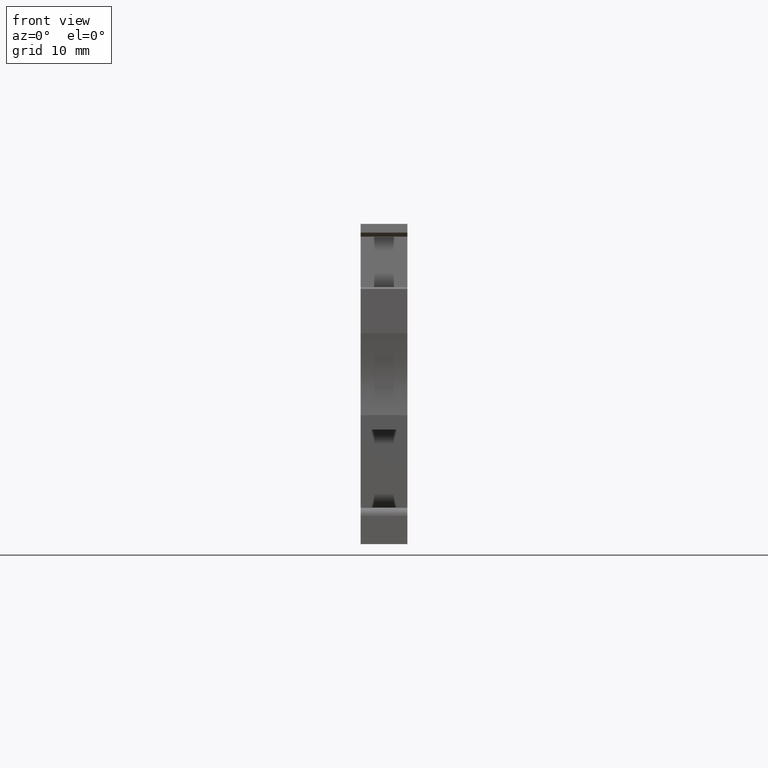
[diagram: clean part render]
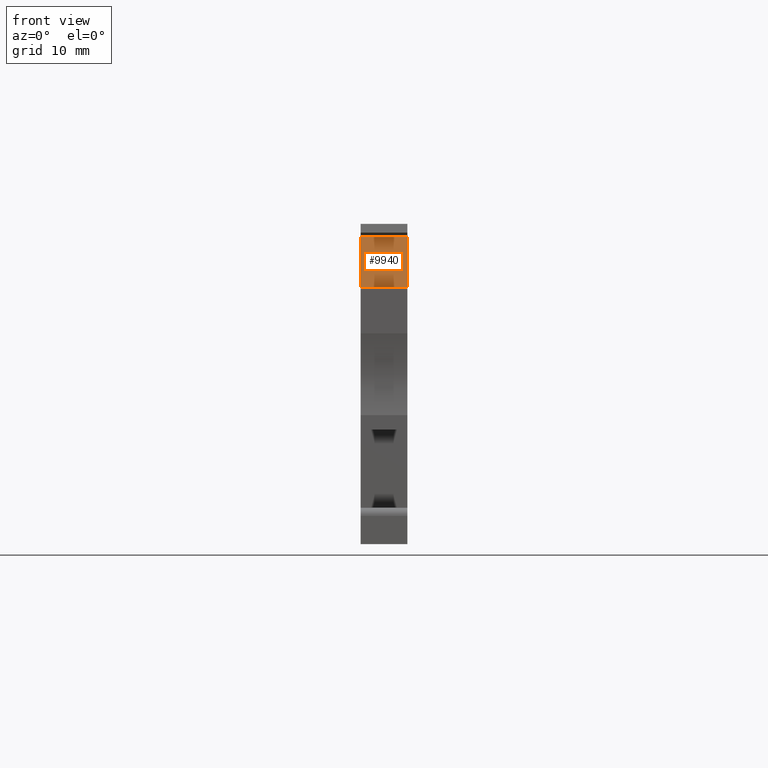
[diagram: same view with one face highlighted and labeled with its STEP entity id]
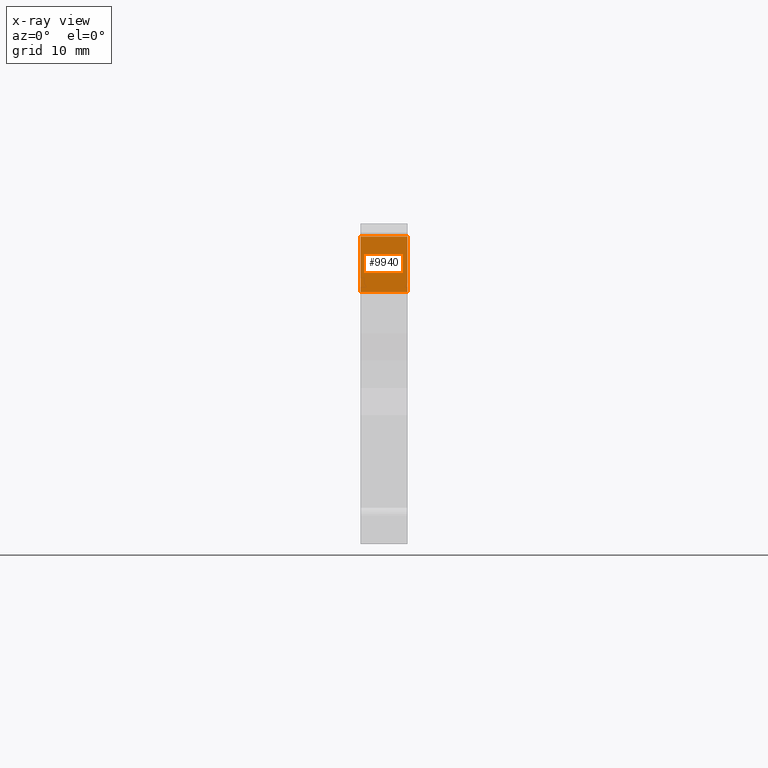
[diagram: x-ray of the same camera — body ghosted, the highlighted face saturated]
A machine part, front view. The second image highlights one B-rep face of the part: STEP entity #9940.
The next image is the same camera in x-ray: the body ghosted, the highlighted face saturated — about 0% of this face is hidden behind the body in this view.
In plain terms, the highlighted planar face has unit normal (-0, -0.9659, 0.2588).
Its self-contained STEP definition (entity closure, byte-faithful):
#4020=CARTESIAN_POINT('',(-0.0594846624507162,27.8733042153419,
-5.14999999999335));
#4030=VERTEX_POINT('',#4020);
#4060=CARTESIAN_POINT('',(-3.97682210279429,-1.31555061342771E-13,
-5.14999999999726));
#4070=DIRECTION('',(0.139173100960265,0.990268068741543,
-1.21874773667031E-13));
#4080=VECTOR('',#4070,1.);
#4090=LINE('',#4060,#4080);
#4100=CARTESIAN_POINT('',(-0.939754526024429,21.6098586805513,
-5.14999999999533));
#4110=VERTEX_POINT('',#4100);
#4120=EDGE_CURVE('',#4110,#4030,#4090,.T.);
#9140=CARTESIAN_POINT('',(-0.939754526024508,21.609858680552,
1.05622265891991E-13));
#9150=DIRECTION('',(1.5334350813322E-14,-1.25227609306364E-13,-1.));
#9160=VECTOR('',#9150,1.);
#9170=LINE('',#9140,#9160);
#9180=CARTESIAN_POINT('',(-0.939754526024508,21.609858680552,
4.67004283477524E-12));
#9190=VERTEX_POINT('',#9180);
#9200=EDGE_CURVE('',#9190,#4110,#9170,.T.);
#9710=CARTESIAN_POINT('',(-0.1638148527067,27.1309563384648,
-5.66500240000058));
#9720=DIRECTION('',(-0.990268068741542,0.139173100960265,
-3.26134326783209E-14));
#9730=DIRECTION('',(0.139173100960265,0.990268068741543,
-1.21874773667031E-13));
#9740=AXIS2_PLACEMENT_3D('',#9710,#9720,#9730);
#9750=PLANE('',#9740);
#9760=ORIENTED_EDGE('',*,*,#4120,.F.);
#9770=CARTESIAN_POINT('',(-0.059484662450796,27.8733042153425,
-6.65235677552009E-13));
#9780=DIRECTION('',(1.5334350813322E-14,-1.25227609306364E-13,-1.));
#9790=VECTOR('',#9780,1.);
#9800=LINE('',#9770,#9790);
#9810=CARTESIAN_POINT('',(-0.0594846624507956,27.8733042153425,
6.64877826274898E-12));
#9820=VERTEX_POINT('',#9810);
#9830=EDGE_CURVE('',#9820,#4030,#9800,.T.);
#9840=ORIENTED_EDGE('',*,*,#9830,.T.);
#9850=CARTESIAN_POINT('',(-3.97682210279437,5.13367126585004E-13,
2.73700208141439E-12));
#9860=DIRECTION('',(0.139173100960265,0.990268068741543,
-1.21874773667031E-13));
#9870=VECTOR('',#9860,1.);
#9880=LINE('',#9850,#9870);
#9890=EDGE_CURVE('',#9190,#9820,#9880,.T.);
#9900=ORIENTED_EDGE('',*,*,#9890,.T.);
#9910=ORIENTED_EDGE('',*,*,#9200,.F.);
#9920=EDGE_LOOP('',(#9910,#9900,#9840,#9760));
#9930=FACE_OUTER_BOUND('',#9920,.T.);
#9940=ADVANCED_FACE('',(#9930),#9750,.T.);